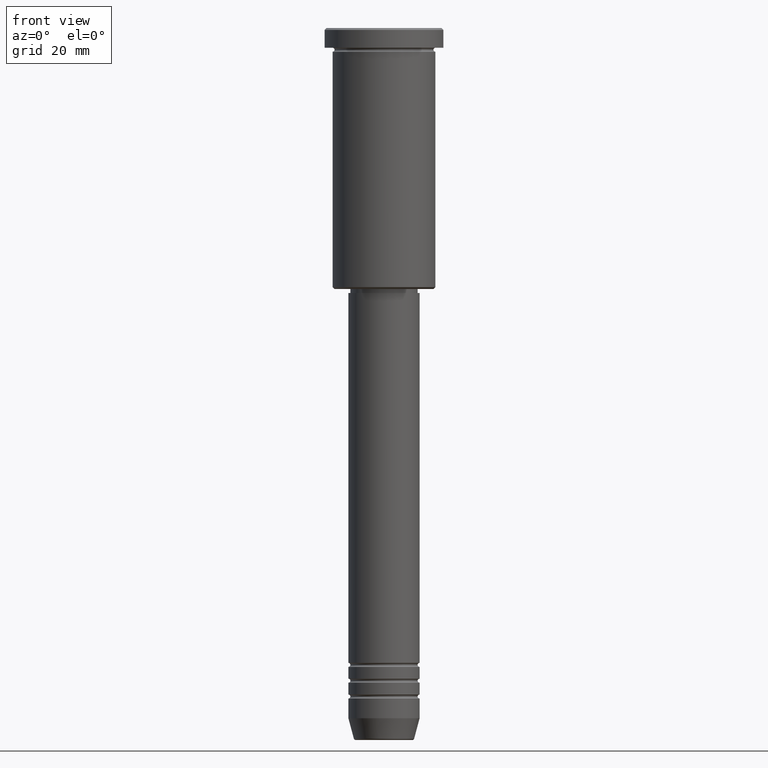
[diagram: clean part render]
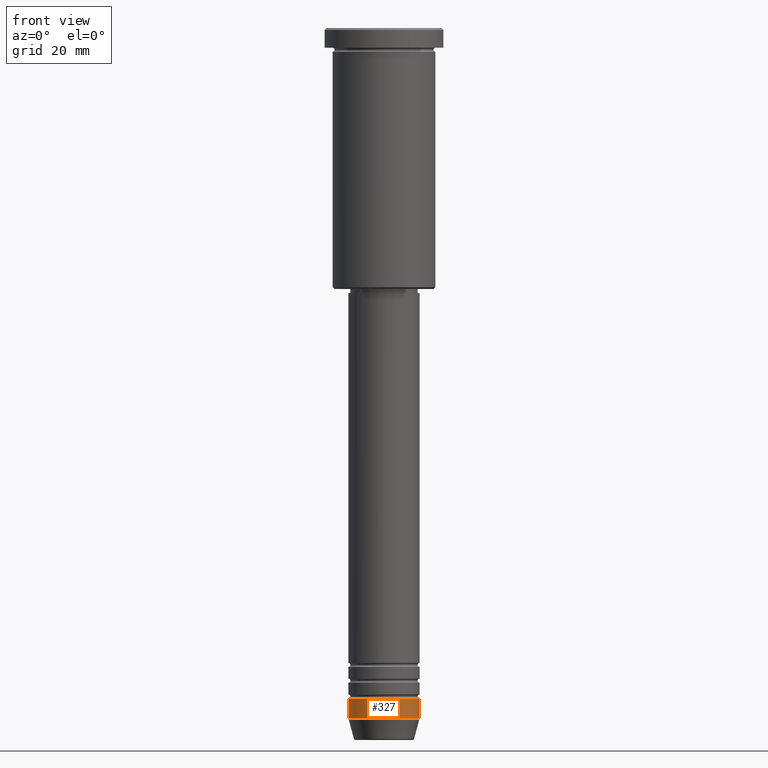
[diagram: same view with one face highlighted and labeled with its STEP entity id]
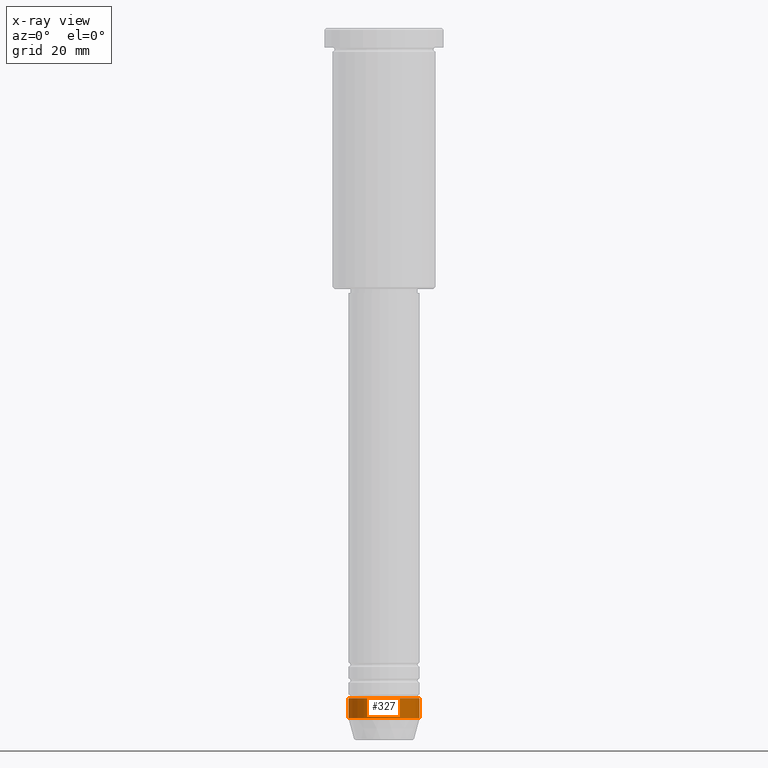
[diagram: x-ray of the same camera — body ghosted, the highlighted face saturated]
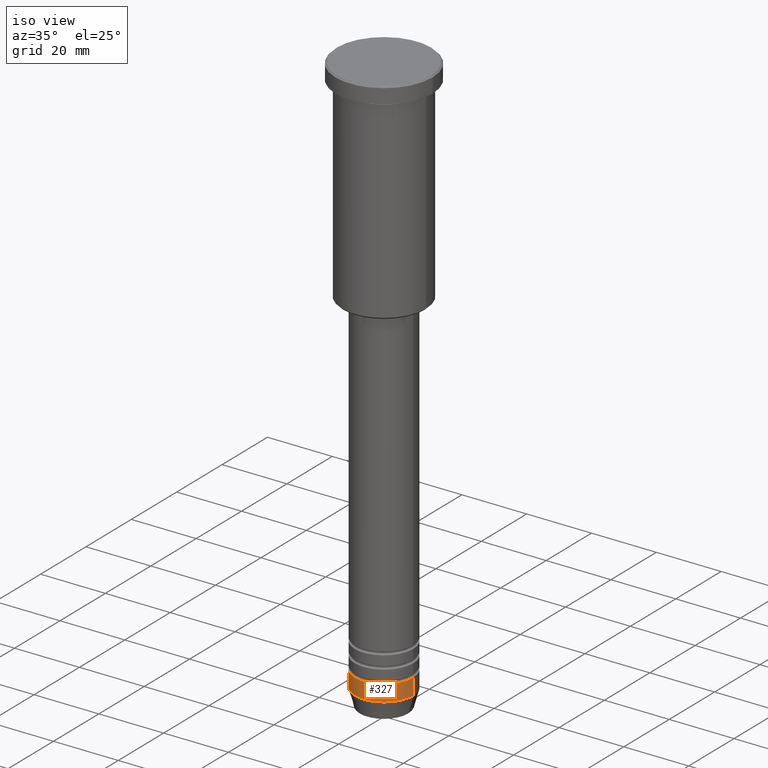
[diagram: same view with one face highlighted and labeled with its STEP entity id]
A machine part, front view. The second image highlights one B-rep face of the part: STEP entity #327.
The next image is the same camera in x-ray: the body ghosted, the highlighted face saturated — about 0% of this face is hidden behind the body in this view.
A second angle (iso view) of the same face is appended — the face is thin or edge-on in the first view.
In plain terms, the highlighted cylindrical surface (edge-blend (fillet) strip) has radius 9 mm, axis along (-0, -0, 1).
Its self-contained STEP definition (entity closure, byte-faithful):
#4 = AXIS2_PLACEMENT_3D ( 'NONE', #816, #632, #361 ) ;
#39 = AXIS2_PLACEMENT_3D ( 'NONE', #368, #1140, #690 ) ;
#64 = CARTESIAN_POINT ( 'NONE',  ( -9.000000000000001776, 1.102182119232617911E-15, 0.000000000000000000 ) ) ;
#80 = ORIENTED_EDGE ( 'NONE', *, *, #1134, .T. ) ;
#108 = DIRECTION ( 'NONE',  ( -0.000000000000000000, -0.000000000000000000, 1.000000000000000000 ) ) ;
#196 = DIRECTION ( 'NONE',  ( 1.000000000000000000, 0.000000000000000000, 0.000000000000000000 ) ) ;
#203 = CYLINDRICAL_SURFACE ( 'NONE', #39, 9.000000000000001776 ) ;
#218 = VERTEX_POINT ( 'NONE', #351 ) ;
#285 = AXIS2_PLACEMENT_3D ( 'NONE', #539, #108, #196 ) ;
#305 = LINE ( 'NONE', #578, #648 ) ;
#307 = ORIENTED_EDGE ( 'NONE', *, *, #536, .F. ) ;
#327 = ADVANCED_FACE ( 'NONE', ( #590 ), #203, .T. ) ;
#342 = ORIENTED_EDGE ( 'NONE', *, *, #1053, .F. ) ;
#351 = CARTESIAN_POINT ( 'NONE',  ( 9.000000000000001776, 0.000000000000000000, -174.5000000000000284 ) ) ;
#361 = DIRECTION ( 'NONE',  ( 1.000000000000000000, 0.000000000000000000, 0.000000000000000000 ) ) ;
#368 = CARTESIAN_POINT ( 'NONE',  ( 0.000000000000000000, 0.000000000000000000, 0.000000000000000000 ) ) ;
#459 = CARTESIAN_POINT ( 'NONE',  ( -9.000000000000000000, 1.102182119232617714E-15, -169.5000000000000000 ) ) ;
#505 = CIRCLE ( 'NONE', #285, 9.000000000000000000 ) ;
#536 = EDGE_CURVE ( 'NONE', #752, #1082, #995, .T. ) ;
#539 = CARTESIAN_POINT ( 'NONE',  ( 0.000000000000000000, 0.000000000000000000, -169.5000000000000000 ) ) ;
#553 = EDGE_LOOP ( 'NONE', ( #307, #80, #1100, #342 ) ) ;
#563 = DIRECTION ( 'NONE',  ( -0.000000000000000000, -0.000000000000000000, 1.000000000000000000 ) ) ;
#578 = CARTESIAN_POINT ( 'NONE',  ( 9.000000000000001776, 0.000000000000000000, 0.000000000000000000 ) ) ;
#590 = FACE_OUTER_BOUND ( 'NONE', #553, .T. ) ;
#632 = DIRECTION ( 'NONE',  ( -0.000000000000000000, -0.000000000000000000, 1.000000000000000000 ) ) ;
#648 = VECTOR ( 'NONE', #563, 1000.000000000000000 ) ;
#690 = DIRECTION ( 'NONE',  ( 1.000000000000000000, 0.000000000000000000, 0.000000000000000000 ) ) ;
#752 = VERTEX_POINT ( 'NONE', #1029 ) ;
#781 = DIRECTION ( 'NONE',  ( -0.000000000000000000, -0.000000000000000000, 1.000000000000000000 ) ) ;
#804 = CARTESIAN_POINT ( 'NONE',  ( 9.000000000000000000, 0.000000000000000000, -169.5000000000000000 ) ) ;
#812 = VECTOR ( 'NONE', #781, 1000.000000000000000 ) ;
#816 = CARTESIAN_POINT ( 'NONE',  ( 0.000000000000000000, 0.000000000000000000, -174.5000000000000284 ) ) ;
#955 = VERTEX_POINT ( 'NONE', #804 ) ;
#995 = LINE ( 'NONE', #64, #812 ) ;
#1010 = CIRCLE ( 'NONE', #4, 9.000000000000001776 ) ;
#1029 = CARTESIAN_POINT ( 'NONE',  ( -9.000000000000001776, 1.102182119232617911E-15, -174.5000000000000284 ) ) ;
#1053 = EDGE_CURVE ( 'NONE', #1082, #955, #505, .T. ) ;
#1082 = VERTEX_POINT ( 'NONE', #459 ) ;
#1100 = ORIENTED_EDGE ( 'NONE', *, *, #1181, .T. ) ;
#1134 = EDGE_CURVE ( 'NONE', #752, #218, #1010, .T. ) ;
#1140 = DIRECTION ( 'NONE',  ( -0.000000000000000000, -0.000000000000000000, 1.000000000000000000 ) ) ;
#1181 = EDGE_CURVE ( 'NONE', #218, #955, #305, .T. ) ;